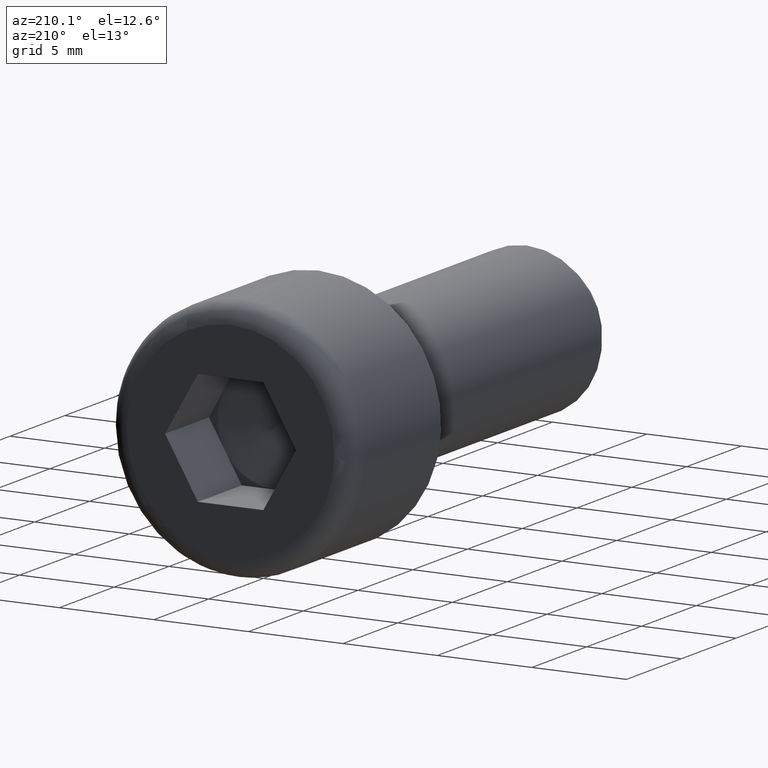
[diagram: clean part render]
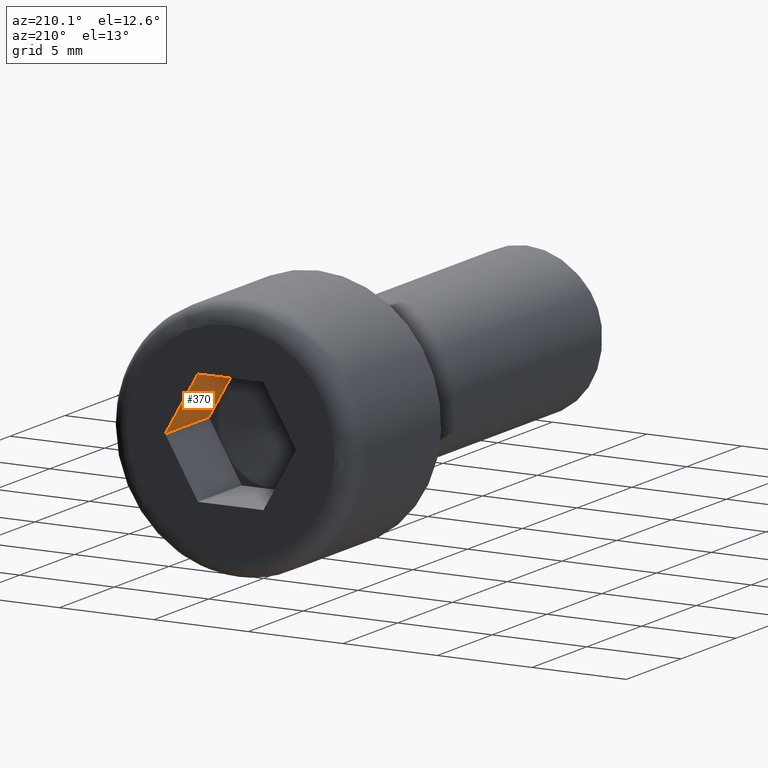
[diagram: same view with one face highlighted and labeled with its STEP entity id]
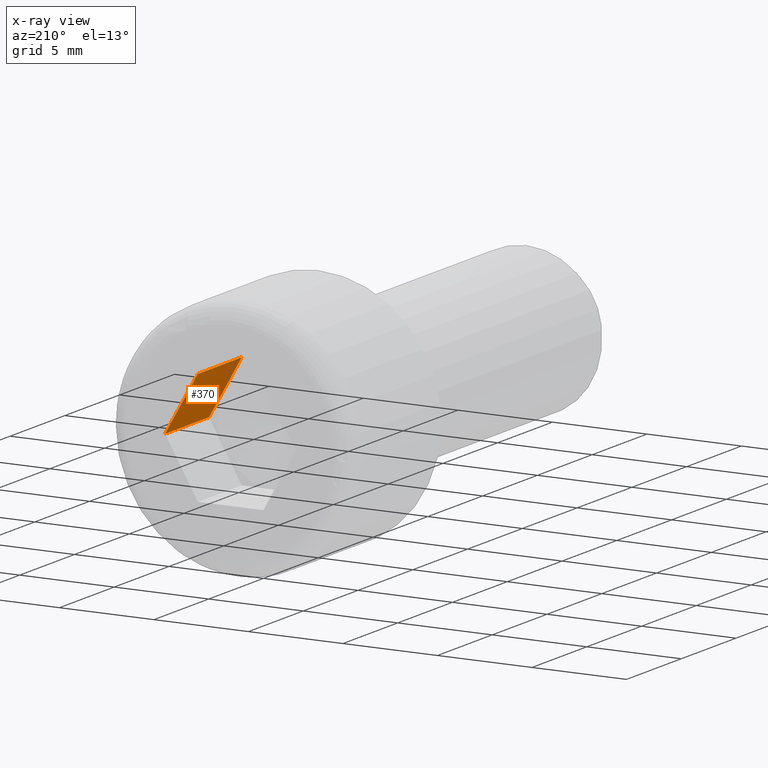
[diagram: x-ray of the same camera — body ghosted, the highlighted face saturated]
A machine part, auxiliary view. The second image highlights one B-rep face of the part: STEP entity #370.
The next image is the same camera in x-ray: the body ghosted, the highlighted face saturated — about 5% of this face is hidden behind the body in this view.
In plain terms, the highlighted planar face has unit normal (0.866, 0, 0.5).
Its self-contained STEP definition (entity closure, byte-faithful):
#202 = VERTEX_POINT ( 'NONE', #8978 ) ;
#352 = CARTESIAN_POINT ( 'NONE',  ( 1.732050807568877600, 4.000000000000000000, 3.000000000000000000 ) ) ;
#370 = ADVANCED_FACE ( 'NONE', ( #6234 ), #3034, .F. ) ;
#1818 = DIRECTION ( 'NONE',  ( 0.5000000000000001100, 0.0000000000000000000, -0.8660254037844384900 ) ) ;
#2729 = EDGE_CURVE ( 'NONE', #10039, #8690, #3516, .T. ) ;
#2732 = CARTESIAN_POINT ( 'NONE',  ( 3.464101615137755300, 8.000000000000000000, 8.032070669435346800E-016 ) ) ;
#3034 = PLANE ( 'NONE',  #8715 ) ;
#3516 = LINE ( 'NONE', #9917, #17023 ) ;
#3849 = ORIENTED_EDGE ( 'NONE', *, *, #5275, .F. ) ;
#4067 = EDGE_CURVE ( 'NONE', #202, #5900, #13298, .T. ) ;
#4438 = DIRECTION ( 'NONE',  ( 0.5000000000000002200, 0.0000000000000000000, -0.8660254037844386000 ) ) ;
#4969 = ORIENTED_EDGE ( 'NONE', *, *, #2729, .F. ) ;
#5275 = EDGE_CURVE ( 'NONE', #7523, #10039, #5970, .T. ) ;
#5525 = CARTESIAN_POINT ( 'NONE',  ( 1.732050807568877600, 4.000000000000000000, 3.000000000000000000 ) ) ;
#5825 = CARTESIAN_POINT ( 'NONE',  ( 1.732050807568877900, 8.000000000000000000, 3.000000000000000000 ) ) ;
#5855 = DIRECTION ( 'NONE',  ( -0.0000000000000000000, 1.000000000000000000, -0.0000000000000000000 ) ) ;
#5900 = VERTEX_POINT ( 'NONE', #5825 ) ;
#5970 = LINE ( 'NONE', #15084, #13887 ) ;
#6234 = FACE_OUTER_BOUND ( 'NONE', #8830, .T. ) ;
#7055 = ORIENTED_EDGE ( 'NONE', *, *, #11873, .F. ) ;
#7330 = VECTOR ( 'NONE', #13504, 1000.000000000000200 ) ;
#7523 = VERTEX_POINT ( 'NONE', #9510 ) ;
#8690 = VERTEX_POINT ( 'NONE', #2732 ) ;
#8715 = AXIS2_PLACEMENT_3D ( 'NONE', #352, #11028, #4438 ) ;
#8830 = EDGE_LOOP ( 'NONE', ( #14168, #4969, #3849, #7055, #16940 ) ) ;
#8978 = CARTESIAN_POINT ( 'NONE',  ( 1.732050807568877600, 4.000000000000000000, 3.000000000000000000 ) ) ;
#9092 = VECTOR ( 'NONE', #9947, 1000.000000000000200 ) ;
#9510 = CARTESIAN_POINT ( 'NONE',  ( 2.598076211353316000, 3.999999999999999100, 1.500000000000000900 ) ) ;
#9917 = CARTESIAN_POINT ( 'NONE',  ( 3.464101615137755300, 4.000000000000000000, 8.032070669435346800E-016 ) ) ;
#9947 = DIRECTION ( 'NONE',  ( 0.5000000000000001100, 0.0000000000000000000, -0.8660254037844384900 ) ) ;
#10039 = VERTEX_POINT ( 'NONE', #12736 ) ;
#11028 = DIRECTION ( 'NONE',  ( 0.8660254037844386000, 0.0000000000000000000, 0.5000000000000002200 ) ) ;
#11465 = DIRECTION ( 'NONE',  ( -0.0000000000000000000, 1.000000000000000000, -0.0000000000000000000 ) ) ;
#11873 = EDGE_CURVE ( 'NONE', #202, #7523, #13987, .T. ) ;
#12736 = CARTESIAN_POINT ( 'NONE',  ( 3.464101615137755300, 4.000000000000000000, 8.032070669435346800E-016 ) ) ;
#13089 = VECTOR ( 'NONE', #11465, 1000.000000000000000 ) ;
#13298 = LINE ( 'NONE', #16730, #13089 ) ;
#13504 = DIRECTION ( 'NONE',  ( 0.5000000000000001100, 0.0000000000000000000, -0.8660254037844384900 ) ) ;
#13887 = VECTOR ( 'NONE', #1818, 1000.000000000000200 ) ;
#13987 = LINE ( 'NONE', #5525, #7330 ) ;
#14131 = CARTESIAN_POINT ( 'NONE',  ( 1.732050807568877600, 8.000000000000000000, 3.000000000000000000 ) ) ;
#14168 = ORIENTED_EDGE ( 'NONE', *, *, #16212, .T. ) ;
#14493 = LINE ( 'NONE', #14131, #9092 ) ;
#15084 = CARTESIAN_POINT ( 'NONE',  ( 1.732050807568877600, 4.000000000000000000, 3.000000000000000000 ) ) ;
#16212 = EDGE_CURVE ( 'NONE', #5900, #8690, #14493, .T. ) ;
#16730 = CARTESIAN_POINT ( 'NONE',  ( 1.732050807568877600, 4.000000000000000000, 3.000000000000000000 ) ) ;
#16940 = ORIENTED_EDGE ( 'NONE', *, *, #4067, .T. ) ;
#17023 = VECTOR ( 'NONE', #5855, 1000.000000000000000 ) ;